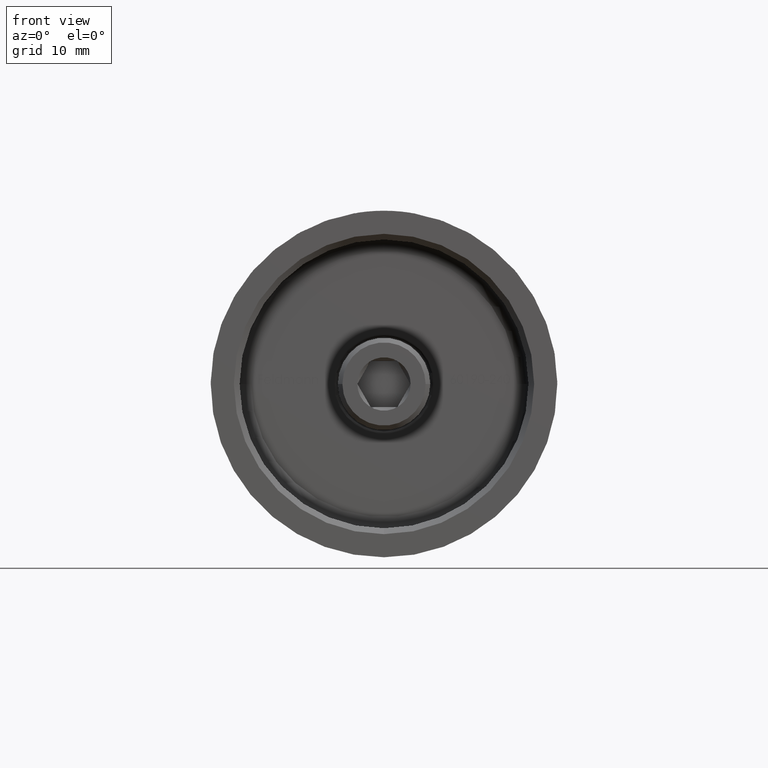
[diagram: clean part render]
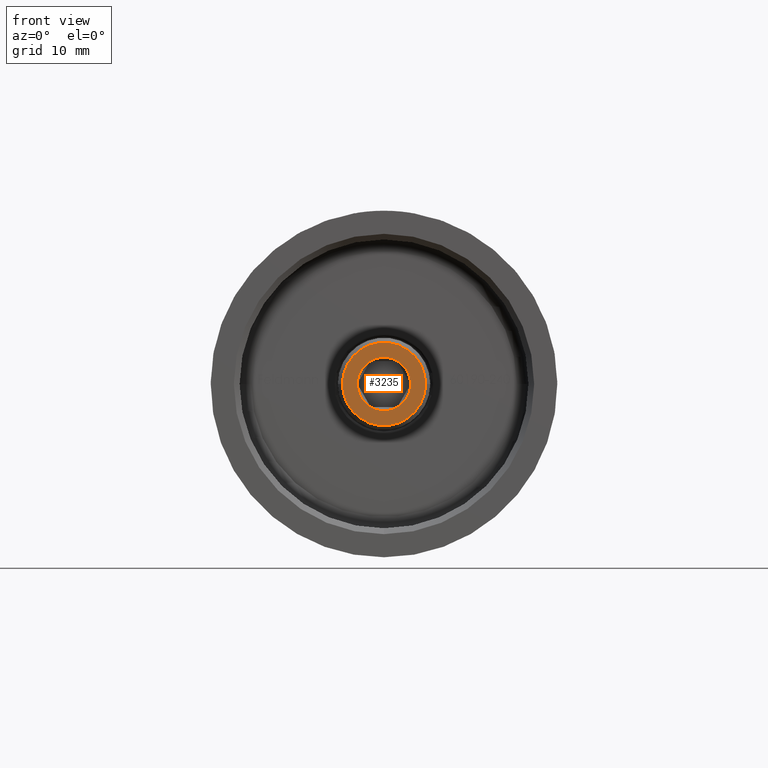
[diagram: same view with one face highlighted and labeled with its STEP entity id]
A machine part, front view. The second image highlights one B-rep face of the part: STEP entity #3235.
In plain terms, the highlighted planar face has unit normal (0, 1, 0).
Its self-contained STEP definition (entity closure, byte-faithful):
#460 = CARTESIAN_POINT ( 'NONE',  ( 2.310000000000000053, 0.000000000000000000, 0.000000000000000000 ) ) ;
#893 = ORIENTED_EDGE ( 'NONE', *, *, #8952, .T. ) ;
#1487 = AXIS2_PLACEMENT_3D ( 'NONE', #12205, #6137, #14620 ) ;
#1693 = CARTESIAN_POINT ( 'NONE',  ( 3.600000000000000533, 4.653657836759942730E-16, 0.000000000000000000 ) ) ;
#1794 = FACE_BOUND ( 'NONE', #10829, .T. ) ;
#1858 = CIRCLE ( 'NONE', #5056, 2.310000000000000053 ) ;
#2309 = CARTESIAN_POINT ( 'NONE',  ( 0.000000000000000000, 0.000000000000000000, 0.000000000000000000 ) ) ;
#2454 = VERTEX_POINT ( 'NONE', #1693 ) ;
#2771 = EDGE_CURVE ( 'NONE', #2454, #10547, #9329, .T. ) ;
#3235 = ADVANCED_FACE ( 'NONE', ( #1794, #8781 ), #5747, .F. ) ;
#3476 = DIRECTION ( 'NONE',  ( -1.000000000000000000, 0.000000000000000000, -0.000000000000000000 ) ) ;
#3643 = DIRECTION ( 'NONE',  ( -1.000000000000000000, 0.000000000000000000, 0.000000000000000000 ) ) ;
#4544 = VERTEX_POINT ( 'NONE', #8579 ) ;
#5008 = VERTEX_POINT ( 'NONE', #460 ) ;
#5056 = AXIS2_PLACEMENT_3D ( 'NONE', #13422, #7339, #8564 ) ;
#5626 = ORIENTED_EDGE ( 'NONE', *, *, #5693, .T. ) ;
#5693 = EDGE_CURVE ( 'NONE', #4544, #5008, #1858, .T. ) ;
#5747 = PLANE ( 'NONE',  #9720 ) ;
#5838 = CARTESIAN_POINT ( 'NONE',  ( 0.000000000000000000, 0.000000000000000000, 0.000000000000000000 ) ) ;
#5888 = DIRECTION ( 'NONE',  ( -0.000000000000000000, -0.000000000000000000, -1.000000000000000000 ) ) ;
#5936 = CIRCLE ( 'NONE', #9448, 2.310000000000000053 ) ;
#6137 = DIRECTION ( 'NONE',  ( -0.000000000000000000, -0.000000000000000000, 1.000000000000000000 ) ) ;
#6972 = CARTESIAN_POINT ( 'NONE',  ( 0.000000000000000000, 0.000000000000000000, 0.000000000000000000 ) ) ;
#7286 = DIRECTION ( 'NONE',  ( -0.000000000000000000, -0.000000000000000000, 1.000000000000000000 ) ) ;
#7339 = DIRECTION ( 'NONE',  ( -0.000000000000000000, -0.000000000000000000, -1.000000000000000000 ) ) ;
#7722 = CARTESIAN_POINT ( 'NONE',  ( -3.600000000000000533, 0.000000000000000000, 0.000000000000000000 ) ) ;
#8564 = DIRECTION ( 'NONE',  ( -1.000000000000000000, 0.000000000000000000, 0.000000000000000000 ) ) ;
#8579 = CARTESIAN_POINT ( 'NONE',  ( -2.310000000000000053, 2.828934106030386301E-16, 0.000000000000000000 ) ) ;
#8781 = FACE_OUTER_BOUND ( 'NONE', #9668, .T. ) ;
#8952 = EDGE_CURVE ( 'NONE', #5008, #4544, #5936, .T. ) ;
#9329 = CIRCLE ( 'NONE', #1487, 3.600000000000000533 ) ;
#9448 = AXIS2_PLACEMENT_3D ( 'NONE', #5838, #5888, #3643 ) ;
#9548 = DIRECTION ( 'NONE',  ( -1.000000000000000000, 0.000000000000000000, 0.000000000000000000 ) ) ;
#9668 = EDGE_LOOP ( 'NONE', ( #14449, #15500 ) ) ;
#9720 = AXIS2_PLACEMENT_3D ( 'NONE', #6972, #14240, #3476 ) ;
#9851 = EDGE_CURVE ( 'NONE', #10547, #2454, #14249, .T. ) ;
#10547 = VERTEX_POINT ( 'NONE', #7722 ) ;
#10829 = EDGE_LOOP ( 'NONE', ( #893, #5626 ) ) ;
#12205 = CARTESIAN_POINT ( 'NONE',  ( 0.000000000000000000, 0.000000000000000000, 0.000000000000000000 ) ) ;
#13021 = AXIS2_PLACEMENT_3D ( 'NONE', #2309, #7286, #9548 ) ;
#13422 = CARTESIAN_POINT ( 'NONE',  ( 0.000000000000000000, 0.000000000000000000, 0.000000000000000000 ) ) ;
#14240 = DIRECTION ( 'NONE',  ( 0.000000000000000000, 0.000000000000000000, -1.000000000000000000 ) ) ;
#14249 = CIRCLE ( 'NONE', #13021, 3.600000000000000533 ) ;
#14449 = ORIENTED_EDGE ( 'NONE', *, *, #9851, .T. ) ;
#14620 = DIRECTION ( 'NONE',  ( -1.000000000000000000, 0.000000000000000000, 0.000000000000000000 ) ) ;
#15500 = ORIENTED_EDGE ( 'NONE', *, *, #2771, .T. ) ;